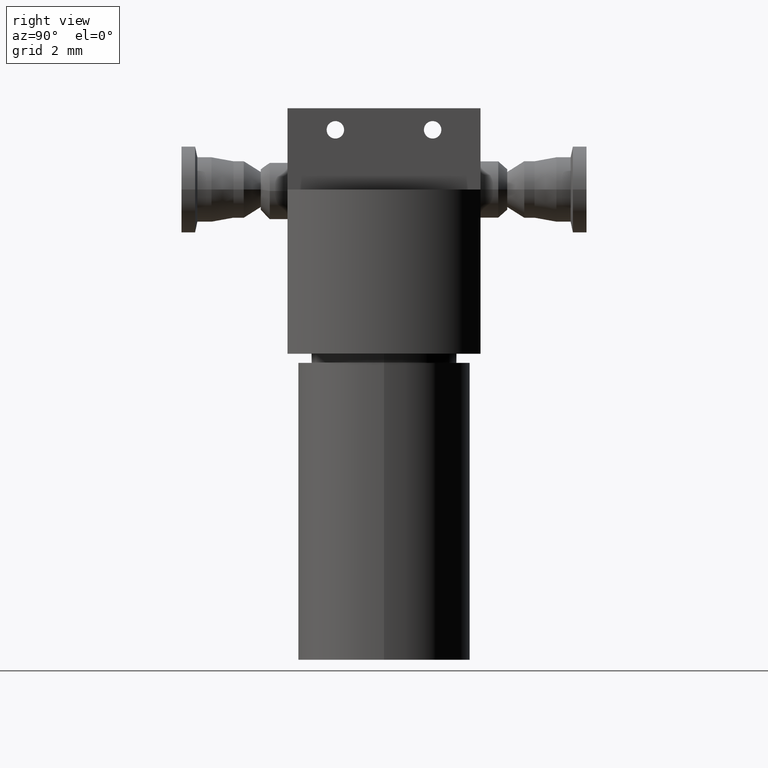
[diagram: clean part render]
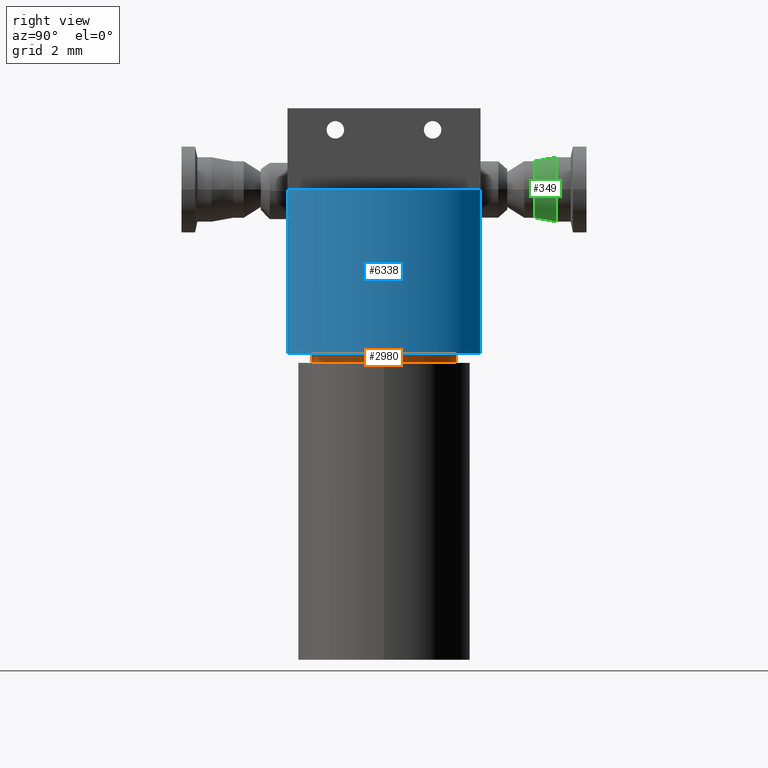
[diagram: same view with three faces highlighted in distinct colors, each labeled with its STEP entity id]
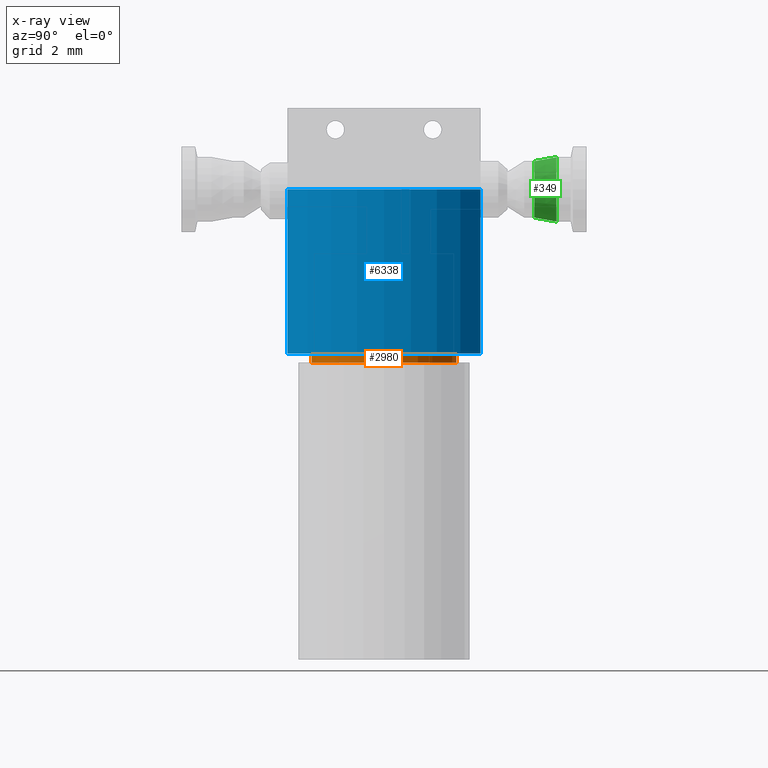
[diagram: x-ray of the same camera — body ghosted, the three highlighted faces saturated]
A machine part, right view with three faces highlighted in distinct colors.
The next image is the same camera in x-ray (body ghosted, the three faces saturated) — at least one of them is partly hidden behind the body in this view.
Their STEP definitions:

[orange] entity #2980 — the highlighted cylindrical surface (bore or boss wall) has radius 1.686 mm, axis along (0, 0, 1).
#2792 = EDGE_CURVE('',#2793,#2793,#2795,.T.);
#2793 = VERTEX_POINT('',#2794);
#2794 = CARTESIAN_POINT('',(4.839106860388,0.,9.298411163393));
#2795 = SURFACE_CURVE('',#2796,(#2801,#2817),.PCURVE_S1.);
#2796 = CIRCLE('',#2797,1.686);
#2797 = AXIS2_PLACEMENT_3D('',#2798,#2799,#2800);
#2798 = CARTESIAN_POINT('',(3.153106860388,0.,9.298411163393));
#2799 = DIRECTION('',(0.,0.,-1.));
#2800 = DIRECTION('',(1.,0.,0.));
#2801 = PCURVE('',#2802,#2807);
#2802 = PLANE('',#2803);
#2803 = AXIS2_PLACEMENT_3D('',#2804,#2805,#2806);
#2804 = CARTESIAN_POINT('',(3.153106860388,0.,9.298411163393));
#2805 = DIRECTION('',(0.,0.,1.));
#2806 = DIRECTION('',(1.,0.,-0.));
#2807 = DEFINITIONAL_REPRESENTATION('',(#2808),#2816);
#2808 = ( BOUNDED_CURVE() B_SPLINE_CURVE(2,(#2809,#2810,#2811,#2812,
#2813,#2814,#2815),.UNSPECIFIED.,.T.,.F.) B_SPLINE_CURVE_WITH_KNOTS((1,2
    ,2,2,2,1),(-2.094395102393,0.,2.094395102393,4.188790204786,
6.28318530718,8.377580409573),.UNSPECIFIED.) CURVE() 
GEOMETRIC_REPRESENTATION_ITEM() RATIONAL_B_SPLINE_CURVE((1.,0.5,1.,0.5,
1.,0.5,1.)) REPRESENTATION_ITEM('') );
#2809 = CARTESIAN_POINT('',(1.686,0.));
#2810 = CARTESIAN_POINT('',(1.686,-2.920237661561));
#2811 = CARTESIAN_POINT('',(-0.843,-1.460118830781));
#2812 = CARTESIAN_POINT('',(-3.372,-4.129509006725E-16));
#2813 = CARTESIAN_POINT('',(-0.843,1.460118830781));
#2814 = CARTESIAN_POINT('',(1.686,2.920237661561));
#2815 = CARTESIAN_POINT('',(1.686,0.));
#2816 = ( GEOMETRIC_REPRESENTATION_CONTEXT(2) 
PARAMETRIC_REPRESENTATION_CONTEXT() REPRESENTATION_CONTEXT('2D SPACE',''
  ) );
#2817 = PCURVE('',#2818,#2823);
#2818 = CYLINDRICAL_SURFACE('',#2819,1.686);
#2819 = AXIS2_PLACEMENT_3D('',#2820,#2821,#2822);
#2820 = CARTESIAN_POINT('',(3.153106860388,0.,7.568411163393));
#2821 = DIRECTION('',(0.,0.,1.));
#2822 = DIRECTION('',(1.,0.,-0.));
#2823 = DEFINITIONAL_REPRESENTATION('',(#2824),#2828);
#2824 = LINE('',#2825,#2826);
#2825 = CARTESIAN_POINT('',(6.28318530718,1.73));
#2826 = VECTOR('',#2827,1.);
#2827 = DIRECTION('',(-1.,0.));
#2828 = ( GEOMETRIC_REPRESENTATION_CONTEXT(2) 
PARAMETRIC_REPRESENTATION_CONTEXT() REPRESENTATION_CONTEXT('2D SPACE',''
  ) );
#2869 = PLANE('',#2870);
#2870 = AXIS2_PLACEMENT_3D('',#2871,#2872,#2873);
#2871 = CARTESIAN_POINT('',(3.153106860388,0.,7.568411163393));
#2872 = DIRECTION('',(0.,0.,1.));
#2873 = DIRECTION('',(1.,0.,-0.));
#2899 = EDGE_CURVE('',#2900,#2900,#2902,.T.);
#2900 = VERTEX_POINT('',#2901);
#2901 = CARTESIAN_POINT('',(4.839106860388,0.,7.568411163393));
#2902 = SURFACE_CURVE('',#2903,(#2908,#2915),.PCURVE_S1.);
#2903 = CIRCLE('',#2904,1.686);
#2904 = AXIS2_PLACEMENT_3D('',#2905,#2906,#2907);
#2905 = CARTESIAN_POINT('',(3.153106860388,0.,7.568411163393));
#2906 = DIRECTION('',(0.,0.,1.));
#2907 = DIRECTION('',(1.,0.,-0.));
#2908 = PCURVE('',#2869,#2909);
#2909 = DEFINITIONAL_REPRESENTATION('',(#2910),#2914);
#2910 = CIRCLE('',#2911,1.686);
#2911 = AXIS2_PLACEMENT_2D('',#2912,#2913);
#2912 = CARTESIAN_POINT('',(0.,0.));
#2913 = DIRECTION('',(1.,0.));
#2914 = ( GEOMETRIC_REPRESENTATION_CONTEXT(2) 
PARAMETRIC_REPRESENTATION_CONTEXT() REPRESENTATION_CONTEXT('2D SPACE',''
  ) );
#2915 = PCURVE('',#2818,#2916);
#2916 = DEFINITIONAL_REPRESENTATION('',(#2917),#2921);
#2917 = LINE('',#2918,#2919);
#2918 = CARTESIAN_POINT('',(0.,0.));
#2919 = VECTOR('',#2920,1.);
#2920 = DIRECTION('',(1.,0.));
#2921 = ( GEOMETRIC_REPRESENTATION_CONTEXT(2) 
PARAMETRIC_REPRESENTATION_CONTEXT() REPRESENTATION_CONTEXT('2D SPACE',''
  ) );
#2980 = ADVANCED_FACE('',(#2981),#2818,.T.);
#2981 = FACE_BOUND('',#2982,.T.);
#2982 = EDGE_LOOP('',(#2983,#2984,#3004,#3005));
#2983 = ORIENTED_EDGE('',*,*,#2792,.T.);
#2984 = ORIENTED_EDGE('',*,*,#2985,.F.);
#2985 = EDGE_CURVE('',#2900,#2793,#2986,.T.);
#2986 = SEAM_CURVE('',#2987,(#2990,#2997),.PCURVE_S1.);
#2987 = B_SPLINE_CURVE_WITH_KNOTS('',1,(#2988,#2989),.UNSPECIFIED.,.F.,
  .F.,(2,2),(0.,1.73),.PIECEWISE_BEZIER_KNOTS.);
#2988 = CARTESIAN_POINT('',(4.839106860388,-4.129509006725E-16,
    7.568411163393));
#2989 = CARTESIAN_POINT('',(4.839106860388,-4.129509006725E-16,
    9.298411163393));
#2990 = PCURVE('',#2818,#2991);
#2991 = DEFINITIONAL_REPRESENTATION('',(#2992),#2996);
#2992 = LINE('',#2993,#2994);
#2993 = CARTESIAN_POINT('',(0.,0.));
#2994 = VECTOR('',#2995,1.);
#2995 = DIRECTION('',(0.,1.));
#2996 = ( GEOMETRIC_REPRESENTATION_CONTEXT(2) 
PARAMETRIC_REPRESENTATION_CONTEXT() REPRESENTATION_CONTEXT('2D SPACE',''
  ) );
#2997 = PCURVE('',#2818,#2998);
#2998 = DEFINITIONAL_REPRESENTATION('',(#2999),#3003);
#2999 = LINE('',#3000,#3001);
#3000 = CARTESIAN_POINT('',(6.28318530718,0.));
#3001 = VECTOR('',#3002,1.);
#3002 = DIRECTION('',(0.,1.));
#3003 = ( GEOMETRIC_REPRESENTATION_CONTEXT(2) 
PARAMETRIC_REPRESENTATION_CONTEXT() REPRESENTATION_CONTEXT('2D SPACE',''
  ) );
#3004 = ORIENTED_EDGE('',*,*,#2899,.T.);
#3005 = ORIENTED_EDGE('',*,*,#2985,.T.);

[blue] entity #6338 — the highlighted cylindrical surface (partial cylindrical patch) has radius 2.99 mm, axis along (0, 0, -1).
#5224 = PLANE('',#5225);
#5225 = AXIS2_PLACEMENT_3D('',#5226,#5227,#5228);
#5226 = CARTESIAN_POINT('',(3.153106860388,2.231591360442,
    11.578411163388));
#5227 = DIRECTION('',(-2.231604069598E-16,1.,0.));
#5228 = DIRECTION('',(1.,2.231604069598E-16,0.));
#5446 = PLANE('',#5447);
#5447 = AXIS2_PLACEMENT_3D('',#5448,#5449,#5450);
#5448 = CARTESIAN_POINT('',(3.153106860388,-2.231591360442,
    11.578411163388));
#5449 = DIRECTION('',(1.227382238279E-15,-1.,0.));
#5450 = DIRECTION('',(-1.,-1.227382238279E-15,0.));
#5820 = PLANE('',#5821);
#5821 = AXIS2_PLACEMENT_3D('',#5822,#5823,#5824);
#5822 = CARTESIAN_POINT('',(3.153106860388,1.332267629548E-15,
    7.778411163393));
#5823 = DIRECTION('',(8.343637039387E-26,7.558621685306E-28,1.));
#5824 = DIRECTION('',(1.,0.,-8.343637039387E-26));
#6038 = VERTEX_POINT('',#6039);
#6039 = CARTESIAN_POINT('',(5.143106860388,-2.231591360442,
    11.578411163388));
#6061 = VERTEX_POINT('',#6062);
#6062 = CARTESIAN_POINT('',(5.143106860388,2.231591360442,
    11.578411163388));
#6076 = PLANE('',#6077);
#6077 = AXIS2_PLACEMENT_3D('',#6078,#6079,#6080);
#6078 = CARTESIAN_POINT('',(3.153106860388,1.332267629548E-15,
    11.578411163388));
#6079 = DIRECTION('',(8.343637039387E-26,7.558621685306E-28,1.));
#6080 = DIRECTION('',(1.,0.,-8.343637039387E-26));
#6160 = EDGE_CURVE('',#6038,#6061,#6161,.T.);
#6161 = SURFACE_CURVE('',#6162,(#6167,#6174),.PCURVE_S1.);
#6162 = CIRCLE('',#6163,2.99);
#6163 = AXIS2_PLACEMENT_3D('',#6164,#6165,#6166);
#6164 = CARTESIAN_POINT('',(3.153106860388,2.664535259099E-15,
    11.578411163388));
#6165 = DIRECTION('',(-4.757069108965E-30,8.511356646873E-31,1.));
#6166 = DIRECTION('',(-1.,-5.52714787526E-76,-4.757069108965E-30));
#6167 = PCURVE('',#6076,#6168);
#6168 = DEFINITIONAL_REPRESENTATION('',(#6169),#6173);
#6169 = CIRCLE('',#6170,2.99);
#6170 = AXIS2_PLACEMENT_2D('',#6171,#6172);
#6171 = CARTESIAN_POINT('',(0.,1.33226762955E-15));
#6172 = DIRECTION('',(-1.,6.30699915488E-53));
#6173 = ( GEOMETRIC_REPRESENTATION_CONTEXT(2) 
PARAMETRIC_REPRESENTATION_CONTEXT() REPRESENTATION_CONTEXT('2D SPACE',''
  ) );
#6174 = PCURVE('',#6175,#6180);
#6175 = CYLINDRICAL_SURFACE('',#6176,2.99);
#6176 = AXIS2_PLACEMENT_3D('',#6177,#6178,#6179);
#6177 = CARTESIAN_POINT('',(3.153106860388,2.664535259099E-15,
    11.578411163388));
#6178 = DIRECTION('',(0.,0.,-1.));
#6179 = DIRECTION('',(-1.,0.,0.));
#6180 = DEFINITIONAL_REPRESENTATION('',(#6181),#6185);
#6181 = LINE('',#6182,#6183);
#6182 = CARTESIAN_POINT('',(6.28318530718,0.));
#6183 = VECTOR('',#6184,1.);
#6184 = DIRECTION('',(-1.,0.));
#6185 = ( GEOMETRIC_REPRESENTATION_CONTEXT(2) 
PARAMETRIC_REPRESENTATION_CONTEXT() REPRESENTATION_CONTEXT('2D SPACE',''
  ) );
#6292 = VERTEX_POINT('',#6293);
#6293 = CARTESIAN_POINT('',(5.143106860388,-2.231591360442,
    7.778411163393));
#6314 = EDGE_CURVE('',#6038,#6292,#6315,.T.);
#6315 = SURFACE_CURVE('',#6316,(#6320,#6327),.PCURVE_S1.);
#6316 = LINE('',#6317,#6318);
#6317 = CARTESIAN_POINT('',(5.143106860388,-2.231591360442,
    11.578411163388));
#6318 = VECTOR('',#6319,1.);
#6319 = DIRECTION('',(0.,0.,-1.));
#6320 = PCURVE('',#5446,#6321);
#6321 = DEFINITIONAL_REPRESENTATION('',(#6322),#6326);
#6322 = LINE('',#6323,#6324);
#6323 = CARTESIAN_POINT('',(-1.99,0.));
#6324 = VECTOR('',#6325,1.);
#6325 = DIRECTION('',(-0.,1.));
#6326 = ( GEOMETRIC_REPRESENTATION_CONTEXT(2) 
PARAMETRIC_REPRESENTATION_CONTEXT() REPRESENTATION_CONTEXT('2D SPACE',''
  ) );
#6327 = PCURVE('',#6175,#6328);
#6328 = DEFINITIONAL_REPRESENTATION('',(#6329),#6333);
#6329 = LINE('',#6330,#6331);
#6330 = CARTESIAN_POINT('',(3.984156023227,0.));
#6331 = VECTOR('',#6332,1.);
#6332 = DIRECTION('',(0.,1.));
#6333 = ( GEOMETRIC_REPRESENTATION_CONTEXT(2) 
PARAMETRIC_REPRESENTATION_CONTEXT() REPRESENTATION_CONTEXT('2D SPACE',''
  ) );
#6338 = ADVANCED_FACE('',(#6339),#6175,.T.);
#6339 = FACE_BOUND('',#6340,.T.);
#6340 = EDGE_LOOP('',(#6341,#6365,#6386,#6387));
#6341 = ORIENTED_EDGE('',*,*,#6342,.T.);
#6342 = EDGE_CURVE('',#6292,#6343,#6345,.T.);
#6343 = VERTEX_POINT('',#6344);
#6344 = CARTESIAN_POINT('',(5.143106860388,2.231591360442,7.778411163393
    ));
#6345 = SURFACE_CURVE('',#6346,(#6351,#6358),.PCURVE_S1.);
#6346 = CIRCLE('',#6347,2.99);
#6347 = AXIS2_PLACEMENT_3D('',#6348,#6349,#6350);
#6348 = CARTESIAN_POINT('',(3.153106860388,2.664535259099E-15,
    7.778411163393));
#6349 = DIRECTION('',(-4.757069108965E-30,8.511356646873E-31,1.));
#6350 = DIRECTION('',(-1.,-5.52714787526E-76,-4.757069108965E-30));
#6351 = PCURVE('',#6175,#6352);
#6352 = DEFINITIONAL_REPRESENTATION('',(#6353),#6357);
#6353 = LINE('',#6354,#6355);
#6354 = CARTESIAN_POINT('',(6.28318530718,3.799999999996));
#6355 = VECTOR('',#6356,1.);
#6356 = DIRECTION('',(-1.,0.));
#6357 = ( GEOMETRIC_REPRESENTATION_CONTEXT(2) 
PARAMETRIC_REPRESENTATION_CONTEXT() REPRESENTATION_CONTEXT('2D SPACE',''
  ) );
#6358 = PCURVE('',#5820,#6359);
#6359 = DEFINITIONAL_REPRESENTATION('',(#6360),#6364);
#6360 = CIRCLE('',#6361,2.99);
#6361 = AXIS2_PLACEMENT_2D('',#6362,#6363);
#6362 = CARTESIAN_POINT('',(0.,1.33226762955E-15));
#6363 = DIRECTION('',(-1.,6.30699915488E-53));
#6364 = ( GEOMETRIC_REPRESENTATION_CONTEXT(2) 
PARAMETRIC_REPRESENTATION_CONTEXT() REPRESENTATION_CONTEXT('2D SPACE',''
  ) );
#6365 = ORIENTED_EDGE('',*,*,#6366,.F.);
#6366 = EDGE_CURVE('',#6061,#6343,#6367,.T.);
#6367 = SURFACE_CURVE('',#6368,(#6372,#6379),.PCURVE_S1.);
#6368 = LINE('',#6369,#6370);
#6369 = CARTESIAN_POINT('',(5.143106860388,2.231591360442,
    11.578411163388));
#6370 = VECTOR('',#6371,1.);
#6371 = DIRECTION('',(0.,0.,-1.));
#6372 = PCURVE('',#6175,#6373);
#6373 = DEFINITIONAL_REPRESENTATION('',(#6374),#6378);
#6374 = LINE('',#6375,#6376);
#6375 = CARTESIAN_POINT('',(2.299029283953,0.));
#6376 = VECTOR('',#6377,1.);
#6377 = DIRECTION('',(0.,1.));
#6378 = ( GEOMETRIC_REPRESENTATION_CONTEXT(2) 
PARAMETRIC_REPRESENTATION_CONTEXT() REPRESENTATION_CONTEXT('2D SPACE',''
  ) );
#6379 = PCURVE('',#5224,#6380);
#6380 = DEFINITIONAL_REPRESENTATION('',(#6381),#6385);
#6381 = LINE('',#6382,#6383);
#6382 = CARTESIAN_POINT('',(1.99,0.));
#6383 = VECTOR('',#6384,1.);
#6384 = DIRECTION('',(0.,1.));
#6385 = ( GEOMETRIC_REPRESENTATION_CONTEXT(2) 
PARAMETRIC_REPRESENTATION_CONTEXT() REPRESENTATION_CONTEXT('2D SPACE',''
  ) );
#6386 = ORIENTED_EDGE('',*,*,#6160,.F.);
#6387 = ORIENTED_EDGE('',*,*,#6314,.T.);

[green] entity #349 — the highlighted conical surface has half-angle 10.354 deg.
#177 = CYLINDRICAL_SURFACE('',#178,0.75);
#178 = AXIS2_PLACEMENT_3D('',#179,#180,#181);
#179 = CARTESIAN_POINT('',(3.153106860388,4.317153930664,11.578411163388
    ));
#180 = DIRECTION('',(0.,-1.,0.));
#181 = DIRECTION('',(1.,0.,0.));
#337 = CYLINDRICAL_SURFACE('',#338,0.6575);
#338 = AXIS2_PLACEMENT_3D('',#339,#340,#341);
#339 = CARTESIAN_POINT('',(3.153106860388,3.482833158086,11.578411163388
    ));
#340 = DIRECTION('',(0.,-1.,0.));
#341 = DIRECTION('',(1.,0.,0.));
#349 = ADVANCED_FACE('',(#350),#363,.T.);
#350 = FACE_BOUND('',#351,.T.);
#351 = EDGE_LOOP('',(#352,#381,#403,#425));
#352 = ORIENTED_EDGE('',*,*,#353,.F.);
#353 = EDGE_CURVE('',#354,#354,#356,.T.);
#354 = VERTEX_POINT('',#355);
#355 = CARTESIAN_POINT('',(3.810606860388,3.482833158086,11.578411163388
    ));
#356 = SURFACE_CURVE('',#357,(#362,#374),.PCURVE_S1.);
#357 = CIRCLE('',#358,0.6575);
#358 = AXIS2_PLACEMENT_3D('',#359,#360,#361);
#359 = CARTESIAN_POINT('',(3.153106860388,3.482833158086,11.578411163388
    ));
#360 = DIRECTION('',(0.,-1.,0.));
#361 = DIRECTION('',(1.,0.,0.));
#362 = PCURVE('',#363,#368);
#363 = CONICAL_SURFACE('',#364,0.6575,0.180710311645);
#364 = AXIS2_PLACEMENT_3D('',#365,#366,#367);
#365 = CARTESIAN_POINT('',(3.153106860388,3.482833158086,11.578411163388
    ));
#366 = DIRECTION('',(0.,1.,0.));
#367 = DIRECTION('',(1.,0.,0.));
#368 = DEFINITIONAL_REPRESENTATION('',(#369),#373);
#369 = LINE('',#370,#371);
#370 = CARTESIAN_POINT('',(6.28318530718,-3.92578674211E-17));
#371 = VECTOR('',#372,1.);
#372 = DIRECTION('',(-1.,0.));
#373 = ( GEOMETRIC_REPRESENTATION_CONTEXT(2) 
PARAMETRIC_REPRESENTATION_CONTEXT() REPRESENTATION_CONTEXT('2D SPACE',''
  ) );
#374 = PCURVE('',#337,#375);
#375 = DEFINITIONAL_REPRESENTATION('',(#376),#380);
#376 = LINE('',#377,#378);
#377 = CARTESIAN_POINT('',(0.,0.));
#378 = VECTOR('',#379,1.);
#379 = DIRECTION('',(1.,0.));
#380 = ( GEOMETRIC_REPRESENTATION_CONTEXT(2) 
PARAMETRIC_REPRESENTATION_CONTEXT() REPRESENTATION_CONTEXT('2D SPACE',''
  ) );
#381 = ORIENTED_EDGE('',*,*,#382,.T.);
#382 = EDGE_CURVE('',#354,#383,#385,.T.);
#383 = VERTEX_POINT('',#384);
#384 = CARTESIAN_POINT('',(3.903106860388,3.989118052446,11.578411163388
    ));
#385 = SEAM_CURVE('',#386,(#389,#396),.PCURVE_S1.);
#386 = B_SPLINE_CURVE_WITH_KNOTS('',1,(#387,#388),.UNSPECIFIED.,.F.,.F.,
  (2,2),(-3.990771354155E-17,0.514665565447),.PIECEWISE_BEZIER_KNOTS.);
#387 = CARTESIAN_POINT('',(3.810606860388,3.482833158086,11.578411163388
    ));
#388 = CARTESIAN_POINT('',(3.903106860388,3.989118052446,11.578411163388
    ));
#389 = PCURVE('',#363,#390);
#390 = DEFINITIONAL_REPRESENTATION('',(#391),#395);
#391 = LINE('',#392,#393);
#392 = CARTESIAN_POINT('',(6.28318530718,0.));
#393 = VECTOR('',#394,1.);
#394 = DIRECTION('',(0.,1.));
#395 = ( GEOMETRIC_REPRESENTATION_CONTEXT(2) 
PARAMETRIC_REPRESENTATION_CONTEXT() REPRESENTATION_CONTEXT('2D SPACE',''
  ) );
#396 = PCURVE('',#363,#397);
#397 = DEFINITIONAL_REPRESENTATION('',(#398),#402);
#398 = LINE('',#399,#400);
#399 = CARTESIAN_POINT('',(0.,0.));
#400 = VECTOR('',#401,1.);
#401 = DIRECTION('',(0.,1.));
#402 = ( GEOMETRIC_REPRESENTATION_CONTEXT(2) 
PARAMETRIC_REPRESENTATION_CONTEXT() REPRESENTATION_CONTEXT('2D SPACE',''
  ) );
#403 = ORIENTED_EDGE('',*,*,#404,.F.);
#404 = EDGE_CURVE('',#383,#383,#405,.T.);
#405 = SURFACE_CURVE('',#406,(#411,#418),.PCURVE_S1.);
#406 = CIRCLE('',#407,0.75);
#407 = AXIS2_PLACEMENT_3D('',#408,#409,#410);
#408 = CARTESIAN_POINT('',(3.153106860388,3.989118052446,11.578411163388
    ));
#409 = DIRECTION('',(-0.,1.,0.));
#410 = DIRECTION('',(1.,0.,0.));
#411 = PCURVE('',#363,#412);
#412 = DEFINITIONAL_REPRESENTATION('',(#413),#417);
#413 = LINE('',#414,#415);
#414 = CARTESIAN_POINT('',(0.,0.50628489436));
#415 = VECTOR('',#416,1.);
#416 = DIRECTION('',(1.,0.));
#417 = ( GEOMETRIC_REPRESENTATION_CONTEXT(2) 
PARAMETRIC_REPRESENTATION_CONTEXT() REPRESENTATION_CONTEXT('2D SPACE',''
  ) );
#418 = PCURVE('',#177,#419);
#419 = DEFINITIONAL_REPRESENTATION('',(#420),#424);
#420 = LINE('',#421,#422);
#421 = CARTESIAN_POINT('',(6.28318530718,0.328035878218));
#422 = VECTOR('',#423,1.);
#423 = DIRECTION('',(-1.,0.));
#424 = ( GEOMETRIC_REPRESENTATION_CONTEXT(2) 
PARAMETRIC_REPRESENTATION_CONTEXT() REPRESENTATION_CONTEXT('2D SPACE',''
  ) );
#425 = ORIENTED_EDGE('',*,*,#382,.F.);